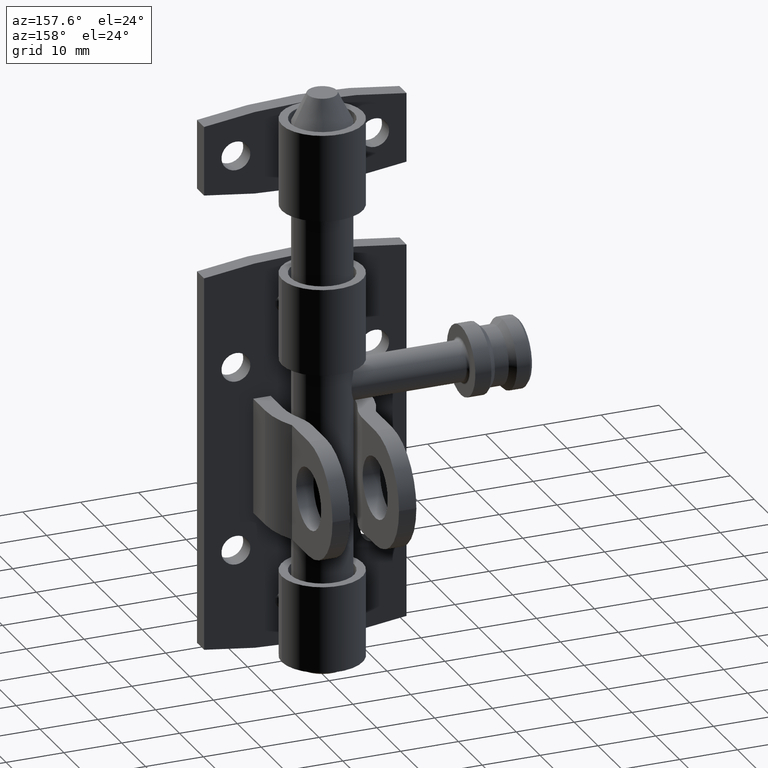
[diagram: clean part render]
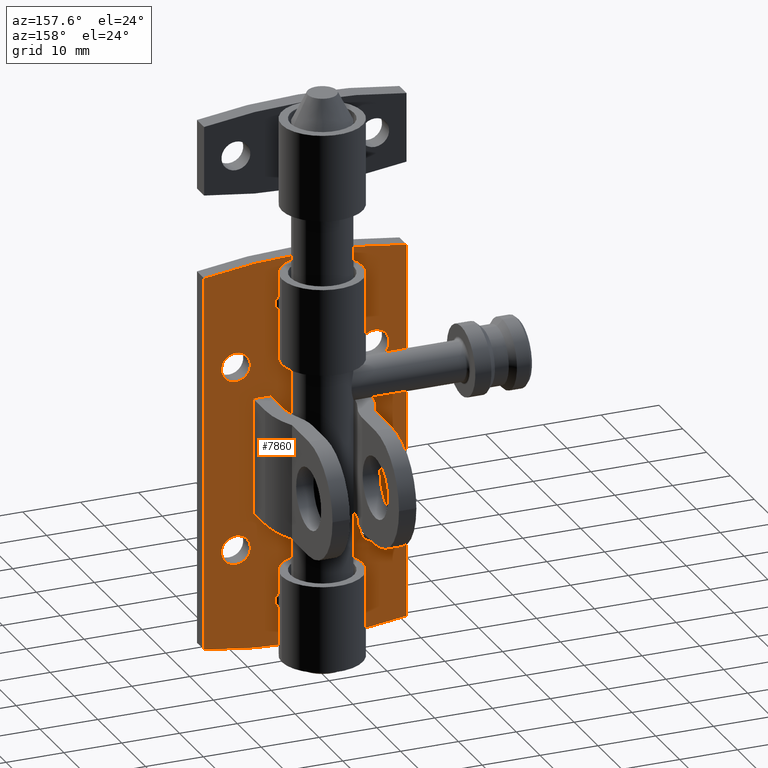
[diagram: same view with one face highlighted and labeled with its STEP entity id]
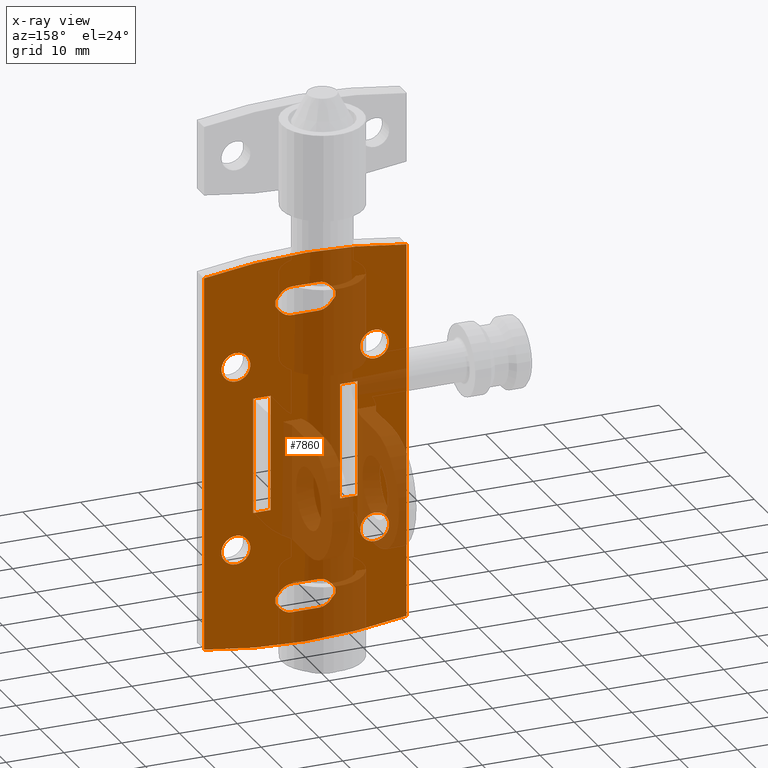
[diagram: x-ray of the same camera — body ghosted, the highlighted face saturated]
A machine part, auxiliary view. The second image highlights one B-rep face of the part: STEP entity #7860.
The next image is the same camera in x-ray: the body ghosted, the highlighted face saturated — about 40% of this face is hidden behind the body in this view.
In plain terms, the highlighted planar face has unit normal (0, -1, 0).
Its self-contained STEP definition (entity closure, byte-faithful):
#64 = DIRECTION ( 'NONE',  ( -1.000000000000000000, 0.000000000000000000, 0.000000000000000000 ) ) ;
#92 = VECTOR ( 'NONE', #12891, 1000.000000000000000 ) ;
#117 = VERTEX_POINT ( 'NONE', #12896 ) ;
#128 = ORIENTED_EDGE ( 'NONE', *, *, #12495, .T. ) ;
#288 = CARTESIAN_POINT ( 'NONE',  ( 9.000000000000000000, 0.000000000000000000, -10.00000000000000000 ) ) ;
#294 = CIRCLE ( 'NONE', #6837, 2.500000000000000444 ) ;
#334 = ORIENTED_EDGE ( 'NONE', *, *, #7791, .T. ) ;
#376 = CARTESIAN_POINT ( 'NONE',  ( -3.371568371149677112, 0.000000000000000000, 23.72836271542519526 ) ) ;
#434 = CARTESIAN_POINT ( 'NONE',  ( -2.347478593096822941, 0.000000000000000000, 23.50000000000000355 ) ) ;
#484 = CARTESIAN_POINT ( 'NONE',  ( -2.649420539169256461, -0.000000000000000000, 23.51530941108964967 ) ) ;
#486 = EDGE_CURVE ( 'NONE', #9283, #9283, #8237, .T. ) ;
#499 = CIRCLE ( 'NONE', #8733, 102.8333333333332860 ) ;
#553 = EDGE_CURVE ( 'NONE', #10382, #10382, #2040, .T. ) ;
#568 = VERTEX_POINT ( 'NONE', #11144 ) ;
#608 = CARTESIAN_POINT ( 'NONE',  ( -3.506114732949787260, -0.000000000000000000, -28.20436991714828423 ) ) ;
#623 = CARTESIAN_POINT ( 'NONE',  ( 17.49999999999994316, 0.000000000000000000, 32.50000000000001421 ) ) ;
#702 = ORIENTED_EDGE ( 'NONE', *, *, #553, .F. ) ;
#752 = CARTESIAN_POINT ( 'NONE',  ( 3.889203751203172299, 0.000000000000000000, 24.03916858956931435 ) ) ;
#756 = FACE_BOUND ( 'NONE', #9969, .T. ) ;
#760 = CARTESIAN_POINT ( 'NONE',  ( -3.371568371149676668, 0.000000000000000000, -28.27163728457481184 ) ) ;
#773 = DIRECTION ( 'NONE',  ( 0.000000000000000000, 0.000000000000000000, 1.000000000000000000 ) ) ;
#809 = CARTESIAN_POINT ( 'NONE',  ( -4.472411843495798678, -5.345529420184391292E-48, -27.48670970214770293 ) ) ;
#837 = EDGE_CURVE ( 'NONE', #14078, #11622, #1810, .T. ) ;
#882 = CARTESIAN_POINT ( 'NONE',  ( 9.000000000000000000, 0.000000000000000000, 10.00000000000000000 ) ) ;
#912 = ORIENTED_EDGE ( 'NONE', *, *, #9158, .T. ) ;
#945 = CARTESIAN_POINT ( 'NONE',  ( 5.175905717843013676, 0.000000000000000000, -25.50000000000000355 ) ) ;
#988 = ORIENTED_EDGE ( 'NONE', *, *, #10568, .T. ) ;
#1029 = CARTESIAN_POINT ( 'NONE',  ( 3.506126978499482849, 0.000000000000000000, -28.20436350212013465 ) ) ;
#1030 = DIRECTION ( 'NONE',  ( -0.000000000000000000, -0.000000000000000000, -1.000000000000000000 ) ) ;
#1158 = CARTESIAN_POINT ( 'NONE',  ( -2.347478593096822941, 0.000000000000000000, 28.50000000000000355 ) ) ;
#1320 = ORIENTED_EDGE ( 'NONE', *, *, #4301, .T. ) ;
#1400 = CARTESIAN_POINT ( 'NONE',  ( -5.175905717843013676, 0.000000000000000000, -26.50000000000000355 ) ) ;
#1476 = CARTESIAN_POINT ( 'NONE',  ( -3.764754152044010205, 0.000000000000000000, 23.95077488737885574 ) ) ;
#1520 = ORIENTED_EDGE ( 'NONE', *, *, #5228, .F. ) ;
#1627 = VERTEX_POINT ( 'NONE', #7430 ) ;
#1635 = LINE ( 'NONE', #288, #11839 ) ;
#1649 = EDGE_LOOP ( 'NONE', ( #4652 ) ) ;
#1705 = CARTESIAN_POINT ( 'NONE',  ( 2.347478593096823385, 0.000000000000000000, 23.50000000000000355 ) ) ;
#1716 = ORIENTED_EDGE ( 'NONE', *, *, #9312, .T. ) ;
#1720 = VECTOR ( 'NONE', #6592, 1000.000000000000000 ) ;
#1740 = CARTESIAN_POINT ( 'NONE',  ( 4.827429623634968081, -1.880790961315660451E-31, -25.00718284549888892 ) ) ;
#1747 = CARTESIAN_POINT ( 'NONE',  ( -2.347478593096822941, 0.000000000000000000, -23.50000000000000355 ) ) ;
#1758 = CARTESIAN_POINT ( 'NONE',  ( 5.175905717843013676, 0.000000000000000000, 25.50000000000000355 ) ) ;
#1810 = LINE ( 'NONE', #10397, #2713 ) ;
#1914 = CARTESIAN_POINT ( 'NONE',  ( 9.000000000000000000, 0.000000000000000000, 10.00000000000000000 ) ) ;
#1947 = CARTESIAN_POINT ( 'NONE',  ( -12.00000000000000178, 0.000000000000000000, -16.00000000000000000 ) ) ;
#2029 = DIRECTION ( 'NONE',  ( 0.000000000000000000, 1.000000000000000000, 0.000000000000000000 ) ) ;
#2040 = CIRCLE ( 'NONE', #9341, 2.499999999999998668 ) ;
#2121 = VERTEX_POINT ( 'NONE', #13578 ) ;
#2149 = CARTESIAN_POINT ( 'NONE',  ( -3.889203751203172299, 0.000000000000000000, -24.03916858956931435 ) ) ;
#2190 = CARTESIAN_POINT ( 'NONE',  ( -4.826796184659485789, 5.701898048196723587E-47, -25.00659948418495659 ) ) ;
#2202 = CARTESIAN_POINT ( 'NONE',  ( 2.499717826399637577, -2.891205793294680298E-16, -28.50000000000001066 ) ) ;
#2275 = DIRECTION ( 'NONE',  ( -0.000000000000000000, -0.000000000000000000, -1.000000000000000000 ) ) ;
#2302 = ORIENTED_EDGE ( 'NONE', *, *, #4608, .F. ) ;
#2315 = DIRECTION ( 'NONE',  ( 0.000000000000000000, 1.000000000000000000, 0.000000000000000000 ) ) ;
#2323 = VERTEX_POINT ( 'NONE', #7614 ) ;
#2339 = AXIS2_PLACEMENT_3D ( 'NONE', #12121, #13277, #10940 ) ;
#2355 = LINE ( 'NONE', #7012, #6199 ) ;
#2358 = ORIENTED_EDGE ( 'NONE', *, *, #486, .F. ) ;
#2440 = ORIENTED_EDGE ( 'NONE', *, *, #13589, .T. ) ;
#2678 = ORIENTED_EDGE ( 'NONE', *, *, #12519, .T. ) ;
#2713 = VECTOR ( 'NONE', #1030, 1000.000000000000000 ) ;
#2719 = VERTEX_POINT ( 'NONE', #12335 ) ;
#2753 = CARTESIAN_POINT ( 'NONE',  ( -9.000000000000000000, 0.000000000000000000, 10.00000000000000000 ) ) ;
#2803 = CARTESIAN_POINT ( 'NONE',  ( 5.175905717843013676, 0.000000000000000000, -25.50000000000000355 ) ) ;
#2874 = CARTESIAN_POINT ( 'NONE',  ( 3.371579392331348846, -0.000000000000000000, 23.72836772461328891 ) ) ;
#2885 = EDGE_CURVE ( 'NONE', #2719, #2323, #7233, .T. ) ;
#2905 = CARTESIAN_POINT ( 'NONE',  ( 2.649420539169256461, -1.604941620322690487E-31, -23.51530941108964967 ) ) ;
#2953 = B_SPLINE_CURVE_WITH_KNOTS ( 'NONE', 3,
 ( #1705, #9845, #12367, #7720, #4041, #2874, #6386, #4092, #752, #11030, #12215, #14544, #7578, #1758 ),
 .UNSPECIFIED., .F., .F.,
 ( 4, 2, 2, 2, 2, 2, 4 ),
 ( 4.336808689942017255E-19, 0.0004505917648125825920, 0.0009011835296251647504, 0.001351775294437746909, 0.001802367059250329067, 0.002703550588875499889, 0.003604734118500670711 ),
 .UNSPECIFIED. ) ;
#3016 = CARTESIAN_POINT ( 'NONE',  ( -2.649423978879160924, -0.000000000000000000, -23.51530975994223382 ) ) ;
#3075 = CARTESIAN_POINT ( 'NONE',  ( 5.175905717843013676, 0.000000000000000000, -26.50000000000000355 ) ) ;
#3086 = CARTESIAN_POINT ( 'NONE',  ( -2.944252973369327453, 0.000000000000000000, -28.42641179481818625 ) ) ;
#3091 = LINE ( 'NONE', #4964, #8783 ) ;
#3109 = LINE ( 'NONE', #13811, #6395 ) ;
#3183 = CARTESIAN_POINT ( 'NONE',  ( 2.649423978879161368, 1.649523331998296705E-32, -28.48469024005776618 ) ) ;
#3192 = DIRECTION ( 'NONE',  ( 1.000000000000000000, 0.000000000000000000, 0.000000000000000000 ) ) ;
#3261 = EDGE_CURVE ( 'NONE', #10049, #4738, #499, .T. ) ;
#3301 = DIRECTION ( 'NONE',  ( 0.000000000000000000, 1.000000000000000000, 0.000000000000000000 ) ) ;
#3387 = CARTESIAN_POINT ( 'NONE',  ( -5.175905717843013676, 0.000000000000000000, 28.50000000000000355 ) ) ;
#3471 = LINE ( 'NONE', #13873, #6938 ) ;
#3502 = DIRECTION ( 'NONE',  ( -0.000000000000000000, -0.000000000000000000, 1.000000000000000000 ) ) ;
#3510 = VERTEX_POINT ( 'NONE', #4302 ) ;
#3545 = EDGE_CURVE ( 'NONE', #6256, #10049, #14705, .T. ) ;
#3649 = FACE_BOUND ( 'NONE', #14743, .T. ) ;
#3699 = LINE ( 'NONE', #1914, #1720 ) ;
#3717 = CARTESIAN_POINT ( 'NONE',  ( -4.239139958969107447, -0.000000000000000000, 27.67634639462446700 ) ) ;
#3750 = CARTESIAN_POINT ( 'NONE',  ( 2.347478593096823385, 0.000000000000000000, -28.50000000000000355 ) ) ;
#3769 = EDGE_LOOP ( 'NONE', ( #2440, #13158, #13521, #10726 ) ) ;
#3776 = CARTESIAN_POINT ( 'NONE',  ( -2.347478593096822941, 0.000000000000000000, 28.50000000000000355 ) ) ;
#3802 = CARTESIAN_POINT ( 'NONE',  ( 2.944252973369327453, 0.000000000000000000, 28.42641179481818625 ) ) ;
#3825 = CARTESIAN_POINT ( 'NONE',  ( -5.002472288594347560, -1.880790961315658480E-31, 26.74527068145646780 ) ) ;
#3861 = CARTESIAN_POINT ( 'NONE',  ( 2.347478593096823385, 0.000000000000000000, 28.50000000000000355 ) ) ;
#3903 = CARTESIAN_POINT ( 'NONE',  ( -5.999999999999999112, 0.000000000000000000, 10.00000000000000000 ) ) ;
#3970 = VERTEX_POINT ( 'NONE', #10142 ) ;
#4041 = CARTESIAN_POINT ( 'NONE',  ( 3.090641446451721119, 0.000000000000000000, 23.61717976937183039 ) ) ;
#4092 = CARTESIAN_POINT ( 'NONE',  ( 3.764768644805953635, -0.000000000000000000, 23.95078451141787212 ) ) ;
#4100 = CARTESIAN_POINT ( 'NONE',  ( -2.499716077684931648, -0.000000000000000000, -28.50000000000000355 ) ) ;
#4169 = EDGE_CURVE ( 'NONE', #11093, #14078, #14514, .T. ) ;
#4214 = CARTESIAN_POINT ( 'NONE',  ( 11.99999999999999822, 0.000000000000000000, -16.00000000000000000 ) ) ;
#4285 = DIRECTION ( 'NONE',  ( 0.000000000000000000, -1.000000000000000000, 0.000000000000000000 ) ) ;
#4287 = CARTESIAN_POINT ( 'NONE',  ( 4.445052908492910682, 0.000000000000000000, -27.45888255076326701 ) ) ;
#4290 = ORIENTED_EDGE ( 'NONE', *, *, #4654, .T. ) ;
#4301 = EDGE_CURVE ( 'NONE', #4803, #11622, #7773, .T. ) ;
#4302 = CARTESIAN_POINT ( 'NONE',  ( -2.347478593096822941, 0.000000000000000000, 23.50000000000000355 ) ) ;
#4338 = CARTESIAN_POINT ( 'NONE',  ( 6.470217255495188649E-15, 0.000000000000000000, 68.83333333333328596 ) ) ;
#4452 = EDGE_CURVE ( 'NONE', #11568, #2719, #6156, .T. ) ;
#4507 = DIRECTION ( 'NONE',  ( 1.000000000000000000, 0.000000000000000000, 0.000000000000000000 ) ) ;
#4580 = CARTESIAN_POINT ( 'NONE',  ( -5.002472288594347560, -1.880790961315658480E-31, -25.25472931854352510 ) ) ;
#4608 = EDGE_CURVE ( 'NONE', #568, #568, #294, .T. ) ;
#4610 = CARTESIAN_POINT ( 'NONE',  ( -9.000000000000000000, 0.000000000000000000, -10.00000000000000000 ) ) ;
#4652 = ORIENTED_EDGE ( 'NONE', *, *, #7643, .F. ) ;
#4654 = EDGE_CURVE ( 'NONE', #14357, #8087, #8740, .T. ) ;
#4706 = LINE ( 'NONE', #6884, #14570 ) ;
#4738 = VERTEX_POINT ( 'NONE', #623 ) ;
#4763 = CARTESIAN_POINT ( 'NONE',  ( -17.50000000000002487, 0.000000000000000000, 32.50000000000000000 ) ) ;
#4777 = B_SPLINE_CURVE_WITH_KNOTS ( 'NONE', 3,
 ( #14690, #12644, #3016, #11172, #13897, #7707, #6823, #9980, #2149, #11551, #9175, #2190, #4580, #5742 ),
 .UNSPECIFIED., .F., .F.,
 ( 4, 2, 2, 2, 2, 2, 4 ),
 ( 0.000000000000000000, 0.0004505917648125822125, 0.0009011835296251644251, 0.001351775294437746692, 0.001802367059250328850, 0.002703550588875499889, 0.003604734118500670711 ),
 .UNSPECIFIED. ) ;
#4803 = VERTEX_POINT ( 'NONE', #4610 ) ;
#4859 = ORIENTED_EDGE ( 'NONE', *, *, #10188, .F. ) ;
#4928 = FACE_BOUND ( 'NONE', #10819, .T. ) ;
#4964 = CARTESIAN_POINT ( 'NONE',  ( 17.49999999999998224, 0.000000000000000000, -32.50000000000000000 ) ) ;
#5042 = CARTESIAN_POINT ( 'NONE',  ( -9.000000000000000000, 0.000000000000000000, 10.00000000000000000 ) ) ;
#5084 = CARTESIAN_POINT ( 'NONE',  ( 4.472411843495798678, -5.345529420184391292E-48, 27.48670970214770293 ) ) ;
#5091 = CARTESIAN_POINT ( 'NONE',  ( 3.090633105444621442, -0.000000000000000000, -23.61717711555222365 ) ) ;
#5145 = CARTESIAN_POINT ( 'NONE',  ( 3.506114732949787260, -0.000000000000000000, -23.79563008285172288 ) ) ;
#5228 = EDGE_CURVE ( 'NONE', #8547, #8451, #3699, .T. ) ;
#5257 = CARTESIAN_POINT ( 'NONE',  ( 2.347478593096823385, 0.000000000000000000, -23.50000000000000355 ) ) ;
#5462 = DIRECTION ( 'NONE',  ( 1.000000000000000000, 0.000000000000000000, 0.000000000000000000 ) ) ;
#5516 = CARTESIAN_POINT ( 'NONE',  ( 5.175905717843013676, 0.000000000000000000, -26.50000000000000355 ) ) ;
#5687 = ORIENTED_EDGE ( 'NONE', *, *, #12460, .T. ) ;
#5724 = EDGE_CURVE ( 'NONE', #14818, #9593, #9569, .T. ) ;
#5742 = CARTESIAN_POINT ( 'NONE',  ( -5.175905717843013676, 0.000000000000000000, -25.50000000000000355 ) ) ;
#5907 = DIRECTION ( 'NONE',  ( -0.000000000000000000, -0.000000000000000000, 1.000000000000000000 ) ) ;
#5951 = DIRECTION ( 'NONE',  ( 1.000000000000000000, 0.000000000000000000, 0.000000000000000000 ) ) ;
#5976 = CARTESIAN_POINT ( 'NONE',  ( -11.99999999999997335, 0.000000000000000000, 18.50000000000000355 ) ) ;
#5993 = VECTOR ( 'NONE', #12204, 1000.000000000000000 ) ;
#6064 = CARTESIAN_POINT ( 'NONE',  ( -4.826796184659485789, 5.701898048196723587E-47, 26.99340051581503985 ) ) ;
#6156 = B_SPLINE_CURVE_WITH_KNOTS ( 'NONE', 3,
 ( #3776, #9697, #12948, #14224, #9535, #14173, #10719, #13004, #7203, #3717, #10817, #6064, #3825, #7250 ),
 .UNSPECIFIED., .F., .F.,
 ( 4, 2, 2, 2, 2, 2, 4 ),
 ( 0.000000000000000000, 0.0004505917648125823752, 0.0009011835296251647504, 0.001351775294437747126, 0.001802367059250329501, 0.002703550588875500756, 0.003604734118500672012 ),
 .UNSPECIFIED. ) ;
#6169 = CARTESIAN_POINT ( 'NONE',  ( -2.499716077684931648, -0.000000000000000000, 23.50000000000000711 ) ) ;
#6193 = DIRECTION ( 'NONE',  ( -1.000000000000000000, 0.000000000000000000, 0.000000000000000000 ) ) ;
#6199 = VECTOR ( 'NONE', #2275, 1000.000000000000000 ) ;
#6256 = VERTEX_POINT ( 'NONE', #7280 ) ;
#6272 = CARTESIAN_POINT ( 'NONE',  ( -5.175905717843013676, 0.000000000000000000, 25.50000000000000355 ) ) ;
#6365 = CARTESIAN_POINT ( 'NONE',  ( 3.889188383384833525, -0.000000000000000000, -24.03915724694533651 ) ) ;
#6378 = AXIS2_PLACEMENT_3D ( 'NONE', #14389, #10770, #11939 ) ;
#6386 = CARTESIAN_POINT ( 'NONE',  ( 3.506126978499482849, 0.000000000000000000, 23.79563649787987600 ) ) ;
#6395 = VECTOR ( 'NONE', #5462, 1000.000000000000000 ) ;
#6510 = EDGE_CURVE ( 'NONE', #11568, #8087, #13338, .T. ) ;
#6522 = CARTESIAN_POINT ( 'NONE',  ( 5.999999999999999112, 0.000000000000000000, -10.00000000000000000 ) ) ;
#6562 = CIRCLE ( 'NONE', #6378, 2.500000000000002220 ) ;
#6563 = CARTESIAN_POINT ( 'NONE',  ( 2.347478593096823385, 0.000000000000000000, 28.50000000000000355 ) ) ;
#6574 = DIRECTION ( 'NONE',  ( 0.000000000000000000, 0.000000000000000000, 1.000000000000000000 ) ) ;
#6592 = DIRECTION ( 'NONE',  ( -0.000000000000000000, -0.000000000000000000, -1.000000000000000000 ) ) ;
#6625 = LINE ( 'NONE', #7728, #9347 ) ;
#6704 = CARTESIAN_POINT ( 'NONE',  ( 5.175905717843013676, 0.000000000000000000, 25.50000000000000355 ) ) ;
#6736 = CARTESIAN_POINT ( 'NONE',  ( 3.371579392331349290, -0.000000000000000000, -28.27163227538671464 ) ) ;
#6787 = CARTESIAN_POINT ( 'NONE',  ( 3.889203751203172299, 0.000000000000000000, -27.96083141043069986 ) ) ;
#6823 = CARTESIAN_POINT ( 'NONE',  ( -3.506126978499482849, 0.000000000000000000, -23.79563649787987600 ) ) ;
#6837 = AXIS2_PLACEMENT_3D ( 'NONE', #1947, #13563, #6574 ) ;
#6884 = CARTESIAN_POINT ( 'NONE',  ( 5.175905717843013676, 0.000000000000000000, -28.50000000000000355 ) ) ;
#6938 = VECTOR ( 'NONE', #64, 1000.000000000000000 ) ;
#6969 = VERTEX_POINT ( 'NONE', #6522 ) ;
#6974 = EDGE_CURVE ( 'NONE', #8789, #12467, #4777, .T. ) ;
#7012 = CARTESIAN_POINT ( 'NONE',  ( 5.175905717843013676, 0.000000000000000000, 28.50000000000000355 ) ) ;
#7081 = DIRECTION ( 'NONE',  ( -0.000000000000000000, -0.000000000000000000, -1.000000000000000000 ) ) ;
#7203 = CARTESIAN_POINT ( 'NONE',  ( -3.889203751203172299, 0.000000000000000000, 27.96083141043069986 ) ) ;
#7233 = LINE ( 'NONE', #10537, #11786 ) ;
#7250 = CARTESIAN_POINT ( 'NONE',  ( -5.175905717843013676, 0.000000000000000000, 26.50000000000000355 ) ) ;
#7280 = CARTESIAN_POINT ( 'NONE',  ( -17.50000000000002487, 0.000000000000000000, -32.50000000000000000 ) ) ;
#7347 = CARTESIAN_POINT ( 'NONE',  ( -5.999999999999999112, 0.000000000000000000, -9.999999999999994671 ) ) ;
#7360 = CARTESIAN_POINT ( 'NONE',  ( -4.472411843495798678, -5.345529420184391292E-48, 24.51329029785230773 ) ) ;
#7377 = AXIS2_PLACEMENT_3D ( 'NONE', #4338, #4285, #7811 ) ;
#7430 = CARTESIAN_POINT ( 'NONE',  ( 11.99999999999998934, 0.000000000000000000, 18.50000000000000355 ) ) ;
#7457 = CARTESIAN_POINT ( 'NONE',  ( -2.944252973369327453, 0.000000000000000000, 23.57358820518182085 ) ) ;
#7557 = CARTESIAN_POINT ( 'NONE',  ( 4.472411843495798678, -5.345529420184391292E-48, -24.51329029785230773 ) ) ;
#7578 = CARTESIAN_POINT ( 'NONE',  ( 5.002472288594347560, -1.880790961315658480E-31, 25.25472931854352510 ) ) ;
#7589 = CARTESIAN_POINT ( 'NONE',  ( -3.090633105444621442, -0.000000000000000000, -28.38282288444777635 ) ) ;
#7614 = CARTESIAN_POINT ( 'NONE',  ( -5.175905717843013676, 0.000000000000000000, 25.50000000000000355 ) ) ;
#7628 = CARTESIAN_POINT ( 'NONE',  ( -2.347478593096822941, 0.000000000000000000, -28.50000000000000355 ) ) ;
#7643 = EDGE_CURVE ( 'NONE', #1627, #1627, #6562, .T. ) ;
#7707 = CARTESIAN_POINT ( 'NONE',  ( -3.371579392331348402, -0.000000000000000000, -23.72836772461328891 ) ) ;
#7720 = CARTESIAN_POINT ( 'NONE',  ( 2.944259693661516408, -0.000000000000000000, 23.57358986464298312 ) ) ;
#7722 = VERTEX_POINT ( 'NONE', #9943 ) ;
#7728 = CARTESIAN_POINT ( 'NONE',  ( -5.175905717843013676, 0.000000000000000000, 23.50000000000000355 ) ) ;
#7773 = LINE ( 'NONE', #9049, #11046 ) ;
#7791 = EDGE_CURVE ( 'NONE', #117, #14608, #2953, .T. ) ;
#7811 = DIRECTION ( 'NONE',  ( 0.000000000000000000, -0.000000000000000000, -1.000000000000000000 ) ) ;
#7860 = ADVANCED_FACE ( 'NONE', ( #11647, #14407, #756, #14603, #8203, #4928, #3649, #12597, #13496 ), #11222, .F. ) ;
#7862 = ORIENTED_EDGE ( 'NONE', *, *, #10848, .T. ) ;
#7885 = EDGE_CURVE ( 'NONE', #8789, #3970, #3109, .T. ) ;
#7967 = CARTESIAN_POINT ( 'NONE',  ( 4.826796184659485789, 5.701898048196723587E-47, -26.99340051581503985 ) ) ;
#8050 = CARTESIAN_POINT ( 'NONE',  ( -5.175905717843013676, 0.000000000000000000, -28.50000000000000355 ) ) ;
#8087 = VERTEX_POINT ( 'NONE', #6563 ) ;
#8192 = CARTESIAN_POINT ( 'NONE',  ( 6.470217255495188649E-15, 0.000000000000000000, -68.83333333333328596 ) ) ;
#8203 = FACE_BOUND ( 'NONE', #1649, .T. ) ;
#8237 = CIRCLE ( 'NONE', #11675, 2.500000000000000444 ) ;
#8238 = EDGE_CURVE ( 'NONE', #8451, #6969, #1635, .T. ) ;
#8451 = VERTEX_POINT ( 'NONE', #11467 ) ;
#8528 = CARTESIAN_POINT ( 'NONE',  ( 3.371568371149676668, 0.000000000000000000, 28.27163728457481184 ) ) ;
#8547 = VERTEX_POINT ( 'NONE', #882 ) ;
#8557 = DIRECTION ( 'NONE',  ( -0.000000000000000000, -0.000000000000000000, -1.000000000000000000 ) ) ;
#8636 = CARTESIAN_POINT ( 'NONE',  ( 4.827429623634968081, -1.880790961315660451E-31, 26.99281715450112173 ) ) ;
#8733 = AXIS2_PLACEMENT_3D ( 'NONE', #8192, #2315, #14034 ) ;
#8740 = B_SPLINE_CURVE_WITH_KNOTS ( 'NONE', 3,
 ( #12020, #8636, #5084, #9733, #9617, #10744, #8528, #11868, #3802, #13241, #10846, #3861 ),
 .UNSPECIFIED., .F., .F.,
 ( 4, 2, 2, 2, 2, 4 ),
 ( -8.944271910021338480E-06, 0.001801784593504583655, 0.002254466809858233101, 0.002707149026211882765, 0.003159831242565532428, 0.003612513458919182092 ),
 .UNSPECIFIED. ) ;
#8742 = ORIENTED_EDGE ( 'NONE', *, *, #7885, .F. ) ;
#8783 = VECTOR ( 'NONE', #8557, 1000.000000000000000 ) ;
#8789 = VERTEX_POINT ( 'NONE', #1747 ) ;
#8826 = CARTESIAN_POINT ( 'NONE',  ( -3.764754152044009317, 0.000000000000000000, -28.04922511262115137 ) ) ;
#8992 = LINE ( 'NONE', #5042, #11898 ) ;
#9049 = CARTESIAN_POINT ( 'NONE',  ( -9.000000000000000000, 0.000000000000000000, -10.00000000000000000 ) ) ;
#9158 = EDGE_CURVE ( 'NONE', #12753, #10461, #12716, .T. ) ;
#9175 = CARTESIAN_POINT ( 'NONE',  ( -4.445052908492910682, 0.000000000000000000, -24.54111744923674365 ) ) ;
#9274 = LINE ( 'NONE', #12314, #5993 ) ;
#9283 = VERTEX_POINT ( 'NONE', #14137 ) ;
#9312 = EDGE_CURVE ( 'NONE', #8547, #2121, #3471, .T. ) ;
#9315 = CIRCLE ( 'NONE', #2339, 102.8333333333332860 ) ;
#9341 = AXIS2_PLACEMENT_3D ( 'NONE', #10268, #3301, #13783 ) ;
#9347 = VECTOR ( 'NONE', #12423, 1000.000000000000000 ) ;
#9358 = ORIENTED_EDGE ( 'NONE', *, *, #4452, .T. ) ;
#9535 = CARTESIAN_POINT ( 'NONE',  ( -3.090641446451721119, 0.000000000000000000, 28.38282023062817672 ) ) ;
#9550 = ORIENTED_EDGE ( 'NONE', *, *, #8238, .F. ) ;
#9569 = B_SPLINE_CURVE_WITH_KNOTS ( 'NONE', 3,
 ( #11090, #13426, #809, #12376, #8826, #608, #760, #7589, #3086, #13577, #4100, #7628 ),
 .UNSPECIFIED., .F., .F.,
 ( 4, 2, 2, 2, 2, 4 ),
 ( -8.944271910021338480E-06, 0.001801784593504583655, 0.002254466809858233101, 0.002707149026211882765, 0.003159831242565532428, 0.003612513458919182092 ),
 .UNSPECIFIED. ) ;
#9593 = VERTEX_POINT ( 'NONE', #14053 ) ;
#9617 = CARTESIAN_POINT ( 'NONE',  ( 3.764754152044009317, 0.000000000000000000, 28.04922511262115137 ) ) ;
#9697 = CARTESIAN_POINT ( 'NONE',  ( -2.499717826399638021, 0.000000000000000000, 28.50000000000001066 ) ) ;
#9733 = CARTESIAN_POINT ( 'NONE',  ( 3.889188383384833525, -0.000000000000000000, 27.96084275305467060 ) ) ;
#9788 = DIRECTION ( 'NONE',  ( -0.000000000000000000, -0.000000000000000000, -1.000000000000000000 ) ) ;
#9845 = CARTESIAN_POINT ( 'NONE',  ( 2.499717826399638021, -2.891205793294680298E-16, 23.50000000000000711 ) ) ;
#9876 = CARTESIAN_POINT ( 'NONE',  ( 3.371568371149677112, 0.000000000000000000, -23.72836271542519526 ) ) ;
#9943 = CARTESIAN_POINT ( 'NONE',  ( 17.49999999999998224, 0.000000000000000000, -32.50000000000000000 ) ) ;
#9969 = EDGE_LOOP ( 'NONE', ( #11424, #2678, #1320, #14729 ) ) ;
#9980 = CARTESIAN_POINT ( 'NONE',  ( -3.764768644805953635, -0.000000000000000000, -23.95078451141787212 ) ) ;
#10037 = ORIENTED_EDGE ( 'NONE', *, *, #2885, .T. ) ;
#10049 = VERTEX_POINT ( 'NONE', #4763 ) ;
#10142 = CARTESIAN_POINT ( 'NONE',  ( 2.347478593096823385, 0.000000000000000000, -23.50000000000000355 ) ) ;
#10188 = EDGE_CURVE ( 'NONE', #14357, #14608, #2355, .T. ) ;
#10268 = CARTESIAN_POINT ( 'NONE',  ( -11.99999999999997335, 0.000000000000000000, 16.00000000000000355 ) ) ;
#10343 = CARTESIAN_POINT ( 'NONE',  ( 4.239139958969107447, -0.000000000000000000, -27.67634639462446700 ) ) ;
#10353 = DIRECTION ( 'NONE',  ( 0.000000000000000000, 0.000000000000000000, 1.000000000000000000 ) ) ;
#10382 = VERTEX_POINT ( 'NONE', #5976 ) ;
#10397 = CARTESIAN_POINT ( 'NONE',  ( -5.999999999999999112, 0.000000000000000000, 10.00000000000000000 ) ) ;
#10461 = VERTEX_POINT ( 'NONE', #3075 ) ;
#10537 = CARTESIAN_POINT ( 'NONE',  ( -5.175905717843013676, 0.000000000000000000, 28.50000000000000355 ) ) ;
#10568 = EDGE_CURVE ( 'NONE', #2121, #6969, #9274, .T. ) ;
#10611 = ORIENTED_EDGE ( 'NONE', *, *, #5724, .T. ) ;
#10620 = EDGE_CURVE ( 'NONE', #4738, #7722, #3091, .T. ) ;
#10626 = VECTOR ( 'NONE', #5951, 1000.000000000000000 ) ;
#10719 = CARTESIAN_POINT ( 'NONE',  ( -3.506126978499482849, 0.000000000000000000, 28.20436350212013465 ) ) ;
#10726 = ORIENTED_EDGE ( 'NONE', *, *, #10620, .T. ) ;
#10744 = CARTESIAN_POINT ( 'NONE',  ( 3.506114732949787260, -0.000000000000000000, 28.20436991714828423 ) ) ;
#10770 = DIRECTION ( 'NONE',  ( 0.000000000000000000, 1.000000000000000000, 0.000000000000000000 ) ) ;
#10772 = VERTEX_POINT ( 'NONE', #945 ) ;
#10781 = B_SPLINE_CURVE_WITH_KNOTS ( 'NONE', 3,
 ( #6272, #13153, #7360, #13360, #1476, #14435, #376, #14325, #7457, #484, #6169, #434 ),
 .UNSPECIFIED., .F., .F.,
 ( 4, 2, 2, 2, 2, 4 ),
 ( -8.944271910021338480E-06, 0.001801784593504583438, 0.002254466809858233101, 0.002707149026211882331, 0.003159831242565531995, 0.003612513458919181658 ),
 .UNSPECIFIED. ) ;
#10817 = CARTESIAN_POINT ( 'NONE',  ( -4.445052908492910682, 0.000000000000000000, 27.45888255076326701 ) ) ;
#10819 = EDGE_LOOP ( 'NONE', ( #702 ) ) ;
#10846 = CARTESIAN_POINT ( 'NONE',  ( 2.499716077684931648, -2.891205793294677833E-16, 28.50000000000000355 ) ) ;
#10848 = EDGE_CURVE ( 'NONE', #10461, #10772, #4706, .T. ) ;
#10907 = CARTESIAN_POINT ( 'NONE',  ( 2.944252973369327453, 0.000000000000000000, -23.57358820518182085 ) ) ;
#10940 = DIRECTION ( 'NONE',  ( 0.000000000000000000, 0.000000000000000000, -1.000000000000000000 ) ) ;
#11030 = CARTESIAN_POINT ( 'NONE',  ( 4.239139958969107447, -0.000000000000000000, 24.32365360537553300 ) ) ;
#11046 = VECTOR ( 'NONE', #3192, 1000.000000000000000 ) ;
#11059 = CARTESIAN_POINT ( 'NONE',  ( 2.499716077684931648, -2.891205793294677833E-16, -23.50000000000000711 ) ) ;
#11083 = CARTESIAN_POINT ( 'NONE',  ( 2.347478593096823385, 0.000000000000000000, -28.50000000000000355 ) ) ;
#11090 = CARTESIAN_POINT ( 'NONE',  ( -5.175905717843013676, 0.000000000000000000, -26.50000000000000355 ) ) ;
#11093 = VERTEX_POINT ( 'NONE', #13307 ) ;
#11109 = EDGE_LOOP ( 'NONE', ( #11257, #9358, #10037, #128, #14033, #334, #4859, #4290 ) ) ;
#11144 = CARTESIAN_POINT ( 'NONE',  ( -12.00000000000000178, 0.000000000000000000, -13.50000000000000000 ) ) ;
#11172 = CARTESIAN_POINT ( 'NONE',  ( -2.944259693661516408, -0.000000000000000000, -23.57358986464298312 ) ) ;
#11178 = LINE ( 'NONE', #8050, #11344 ) ;
#11222 = PLANE ( 'NONE',  #7377 ) ;
#11257 = ORIENTED_EDGE ( 'NONE', *, *, #6510, .F. ) ;
#11317 = CARTESIAN_POINT ( 'NONE',  ( 5.002472288594347560, -1.880790961315658480E-31, -26.74527068145646780 ) ) ;
#11344 = VECTOR ( 'NONE', #3502, 1000.000000000000000 ) ;
#11420 = CARTESIAN_POINT ( 'NONE',  ( 2.944259693661516408, -0.000000000000000000, -28.42641013535701688 ) ) ;
#11424 = ORIENTED_EDGE ( 'NONE', *, *, #4169, .F. ) ;
#11467 = CARTESIAN_POINT ( 'NONE',  ( 9.000000000000000000, 0.000000000000000000, -9.999999999999994671 ) ) ;
#11551 = CARTESIAN_POINT ( 'NONE',  ( -4.239139958969107447, -0.000000000000000000, -24.32365360537553300 ) ) ;
#11568 = VERTEX_POINT ( 'NONE', #1158 ) ;
#11622 = VERTEX_POINT ( 'NONE', #7347 ) ;
#11638 = EDGE_LOOP ( 'NONE', ( #1716, #988, #9550, #1520 ) ) ;
#11647 = FACE_BOUND ( 'NONE', #13064, .T. ) ;
#11675 = AXIS2_PLACEMENT_3D ( 'NONE', #4214, #2029, #773 ) ;
#11786 = VECTOR ( 'NONE', #7081, 1000.000000000000000 ) ;
#11839 = VECTOR ( 'NONE', #6193, 1000.000000000000000 ) ;
#11848 = EDGE_CURVE ( 'NONE', #10772, #3970, #13972, .T. ) ;
#11868 = CARTESIAN_POINT ( 'NONE',  ( 3.090633105444621442, -0.000000000000000000, 28.38282288444777635 ) ) ;
#11892 = ORIENTED_EDGE ( 'NONE', *, *, #12768, .F. ) ;
#11898 = VECTOR ( 'NONE', #9788, 1000.000000000000000 ) ;
#11939 = DIRECTION ( 'NONE',  ( 0.000000000000000000, 0.000000000000000000, 1.000000000000000000 ) ) ;
#12020 = CARTESIAN_POINT ( 'NONE',  ( 5.175905717843013676, 0.000000000000000000, 26.50000000000000355 ) ) ;
#12099 = CARTESIAN_POINT ( 'NONE',  ( -5.175905717843013676, 0.000000000000000000, -25.50000000000000355 ) ) ;
#12121 = CARTESIAN_POINT ( 'NONE',  ( 6.470217255495188649E-15, 0.000000000000000000, 68.83333333333328596 ) ) ;
#12204 = DIRECTION ( 'NONE',  ( -0.000000000000000000, -0.000000000000000000, -1.000000000000000000 ) ) ;
#12215 = CARTESIAN_POINT ( 'NONE',  ( 4.445052908492910682, 0.000000000000000000, 24.54111744923674365 ) ) ;
#12250 = CARTESIAN_POINT ( 'NONE',  ( 3.764754152044010205, 0.000000000000000000, -23.95077488737885574 ) ) ;
#12278 = EDGE_CURVE ( 'NONE', #3510, #117, #6625, .T. ) ;
#12314 = CARTESIAN_POINT ( 'NONE',  ( 5.999999999999999112, 0.000000000000000000, 10.00000000000000000 ) ) ;
#12335 = CARTESIAN_POINT ( 'NONE',  ( -5.175905717843013676, 0.000000000000000000, 26.50000000000000355 ) ) ;
#12367 = CARTESIAN_POINT ( 'NONE',  ( 2.649423978879160924, 1.649523331998296705E-32, 23.51530975994223382 ) ) ;
#12376 = CARTESIAN_POINT ( 'NONE',  ( -3.889188383384833525, -0.000000000000000000, -27.96084275305467060 ) ) ;
#12423 = DIRECTION ( 'NONE',  ( 1.000000000000000000, 0.000000000000000000, 0.000000000000000000 ) ) ;
#12460 = EDGE_CURVE ( 'NONE', #9593, #12753, #14847, .T. ) ;
#12467 = VERTEX_POINT ( 'NONE', #12099 ) ;
#12495 = EDGE_CURVE ( 'NONE', #2323, #3510, #10781, .T. ) ;
#12519 = EDGE_CURVE ( 'NONE', #11093, #4803, #8992, .T. ) ;
#12573 = CARTESIAN_POINT ( 'NONE',  ( -17.50000000000002487, 0.000000000000000000, -32.50000000000000000 ) ) ;
#12597 = FACE_OUTER_BOUND ( 'NONE', #3769, .T. ) ;
#12644 = CARTESIAN_POINT ( 'NONE',  ( -2.499717826399638021, 0.000000000000000000, -23.50000000000000711 ) ) ;
#12716 = B_SPLINE_CURVE_WITH_KNOTS ( 'NONE', 3,
 ( #11083, #2202, #3183, #11420, #13616, #6736, #1029, #13768, #6787, #10343, #4287, #7967, #11317, #5516 ),
 .UNSPECIFIED., .F., .F.,
 ( 4, 2, 2, 2, 2, 2, 4 ),
 ( 4.336808689942017255E-19, 0.0004505917648125827546, 0.0009011835296251650756, 0.001351775294437747559, 0.001802367059250329718, 0.002703550588875500756, 0.003604734118500672012 ),
 .UNSPECIFIED. ) ;
#12753 = VERTEX_POINT ( 'NONE', #3750 ) ;
#12768 = EDGE_CURVE ( 'NONE', #14818, #12467, #11178, .T. ) ;
#12796 = VECTOR ( 'NONE', #4507, 1000.000000000000000 ) ;
#12891 = DIRECTION ( 'NONE',  ( 1.000000000000000000, 0.000000000000000000, 0.000000000000000000 ) ) ;
#12896 = CARTESIAN_POINT ( 'NONE',  ( 2.347478593096823385, 0.000000000000000000, 23.50000000000000355 ) ) ;
#12942 = CARTESIAN_POINT ( 'NONE',  ( -5.175905717843013676, 0.000000000000000000, -28.50000000000000355 ) ) ;
#12948 = CARTESIAN_POINT ( 'NONE',  ( -2.649423978879160924, -0.000000000000000000, 28.48469024005776618 ) ) ;
#13004 = CARTESIAN_POINT ( 'NONE',  ( -3.764768644805953635, -0.000000000000000000, 28.04921548858214209 ) ) ;
#13005 = CARTESIAN_POINT ( 'NONE',  ( 5.175905717843013676, 0.000000000000000000, 26.50000000000000355 ) ) ;
#13064 = EDGE_LOOP ( 'NONE', ( #11892, #10611, #5687, #912, #7862, #13939, #8742, #15054 ) ) ;
#13153 = CARTESIAN_POINT ( 'NONE',  ( -4.827429623634968081, -1.880790961315660451E-31, 25.00718284549888892 ) ) ;
#13158 = ORIENTED_EDGE ( 'NONE', *, *, #3545, .T. ) ;
#13241 = CARTESIAN_POINT ( 'NONE',  ( 2.649420539169256461, -1.604941620322690487E-31, 28.48469058891035388 ) ) ;
#13277 = DIRECTION ( 'NONE',  ( 0.000000000000000000, 1.000000000000000000, -0.000000000000000000 ) ) ;
#13307 = CARTESIAN_POINT ( 'NONE',  ( -9.000000000000000000, 0.000000000000000000, 10.00000000000000000 ) ) ;
#13338 = LINE ( 'NONE', #3387, #12796 ) ;
#13360 = CARTESIAN_POINT ( 'NONE',  ( -3.889188383384833525, -0.000000000000000000, 24.03915724694533651 ) ) ;
#13426 = CARTESIAN_POINT ( 'NONE',  ( -4.827429623634968081, -1.880790961315660451E-31, -26.99281715450112173 ) ) ;
#13496 = FACE_BOUND ( 'NONE', #11638, .T. ) ;
#13521 = ORIENTED_EDGE ( 'NONE', *, *, #3261, .T. ) ;
#13563 = DIRECTION ( 'NONE',  ( 0.000000000000000000, 1.000000000000000000, 0.000000000000000000 ) ) ;
#13577 = CARTESIAN_POINT ( 'NONE',  ( -2.649420539169256461, -0.000000000000000000, -28.48469058891035388 ) ) ;
#13578 = CARTESIAN_POINT ( 'NONE',  ( 5.999999999999999112, 0.000000000000000000, 10.00000000000000000 ) ) ;
#13589 = EDGE_CURVE ( 'NONE', #7722, #6256, #9315, .T. ) ;
#13616 = CARTESIAN_POINT ( 'NONE',  ( 3.090641446451721563, 0.000000000000000000, -28.38282023062817672 ) ) ;
#13768 = CARTESIAN_POINT ( 'NONE',  ( 3.764768644805953635, -0.000000000000000000, -28.04921548858214209 ) ) ;
#13783 = DIRECTION ( 'NONE',  ( 0.000000000000000000, 0.000000000000000000, 1.000000000000000000 ) ) ;
#13811 = CARTESIAN_POINT ( 'NONE',  ( -5.175905717843013676, 0.000000000000000000, -23.50000000000000355 ) ) ;
#13873 = CARTESIAN_POINT ( 'NONE',  ( 9.000000000000000000, 0.000000000000000000, 10.00000000000000000 ) ) ;
#13897 = CARTESIAN_POINT ( 'NONE',  ( -3.090641446451720675, 0.000000000000000000, -23.61717976937183039 ) ) ;
#13939 = ORIENTED_EDGE ( 'NONE', *, *, #11848, .T. ) ;
#13972 = B_SPLINE_CURVE_WITH_KNOTS ( 'NONE', 3,
 ( #2803, #1740, #7557, #6365, #12250, #5145, #9876, #5091, #10907, #2905, #11059, #5257 ),
 .UNSPECIFIED., .F., .F.,
 ( 4, 2, 2, 2, 2, 4 ),
 ( -8.944271910021338480E-06, 0.001801784593504583438, 0.002254466809858233101, 0.002707149026211882331, 0.003159831242565531995, 0.003612513458919181658 ),
 .UNSPECIFIED. ) ;
#14033 = ORIENTED_EDGE ( 'NONE', *, *, #12278, .T. ) ;
#14034 = DIRECTION ( 'NONE',  ( 0.000000000000000000, 0.000000000000000000, 1.000000000000000000 ) ) ;
#14053 = CARTESIAN_POINT ( 'NONE',  ( -2.347478593096822941, 0.000000000000000000, -28.50000000000000355 ) ) ;
#14078 = VERTEX_POINT ( 'NONE', #3903 ) ;
#14137 = CARTESIAN_POINT ( 'NONE',  ( 11.99999999999999822, 0.000000000000000000, -13.50000000000000000 ) ) ;
#14173 = CARTESIAN_POINT ( 'NONE',  ( -3.371579392331349290, -0.000000000000000000, 28.27163227538671464 ) ) ;
#14224 = CARTESIAN_POINT ( 'NONE',  ( -2.944259693661516408, -0.000000000000000000, 28.42641013535701688 ) ) ;
#14325 = CARTESIAN_POINT ( 'NONE',  ( -3.090633105444621442, -0.000000000000000000, 23.61717711555222365 ) ) ;
#14357 = VERTEX_POINT ( 'NONE', #13005 ) ;
#14389 = CARTESIAN_POINT ( 'NONE',  ( 11.99999999999998934, 0.000000000000000000, 16.00000000000000000 ) ) ;
#14407 = FACE_BOUND ( 'NONE', #11109, .T. ) ;
#14435 = CARTESIAN_POINT ( 'NONE',  ( -3.506114732949787260, -0.000000000000000000, 23.79563008285172288 ) ) ;
#14514 = LINE ( 'NONE', #2753, #92 ) ;
#14544 = CARTESIAN_POINT ( 'NONE',  ( 4.826796184659485789, 5.701898048196723587E-47, 25.00659948418495659 ) ) ;
#14570 = VECTOR ( 'NONE', #5907, 1000.000000000000000 ) ;
#14603 = FACE_BOUND ( 'NONE', #14906, .T. ) ;
#14608 = VERTEX_POINT ( 'NONE', #6704 ) ;
#14690 = CARTESIAN_POINT ( 'NONE',  ( -2.347478593096822941, 0.000000000000000000, -23.50000000000000355 ) ) ;
#14705 = LINE ( 'NONE', #12573, #15082 ) ;
#14729 = ORIENTED_EDGE ( 'NONE', *, *, #837, .F. ) ;
#14743 = EDGE_LOOP ( 'NONE', ( #2302 ) ) ;
#14818 = VERTEX_POINT ( 'NONE', #1400 ) ;
#14847 = LINE ( 'NONE', #12942, #10626 ) ;
#14906 = EDGE_LOOP ( 'NONE', ( #2358 ) ) ;
#15054 = ORIENTED_EDGE ( 'NONE', *, *, #6974, .T. ) ;
#15082 = VECTOR ( 'NONE', #10353, 1000.000000000000000 ) ;